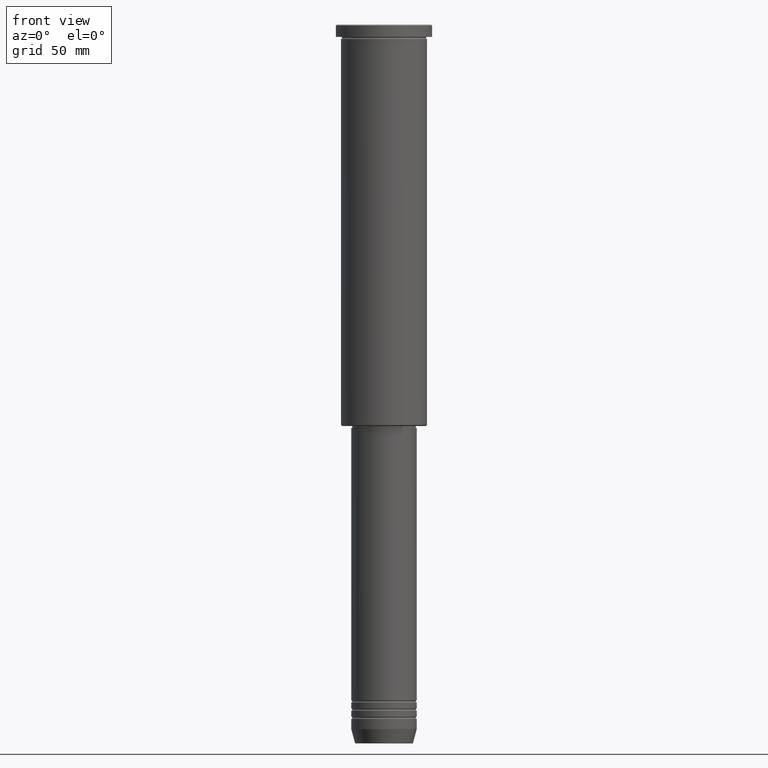
[diagram: clean part render]
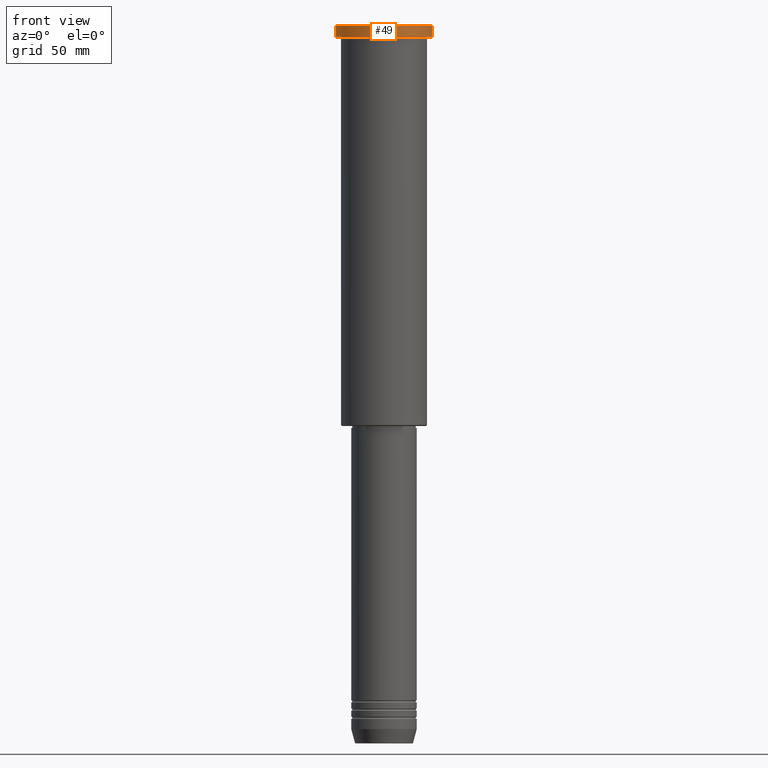
[diagram: same view with one face highlighted and labeled with its STEP entity id]
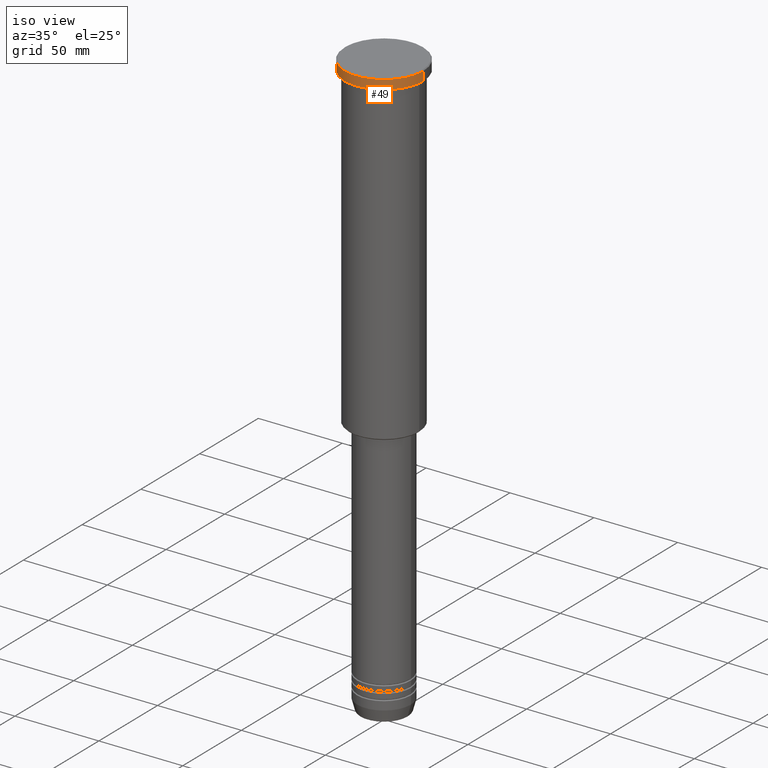
[diagram: same view with one face highlighted and labeled with its STEP entity id]
A machine part, front view. The second image highlights one B-rep face of the part: STEP entity #49.
A second angle (iso view) of the same face is appended — the face is thin or edge-on in the first view.
In plain terms, the highlighted cylindrical surface (partial cylindrical patch) has radius 23.5 mm, axis along (-0, -0, 1).
Its self-contained STEP definition (entity closure, byte-faithful):
#8 = CARTESIAN_POINT ( 'NONE',  ( 0.000000000000000000, 0.000000000000000000, 0.000000000000000000 ) ) ;
#12 = CARTESIAN_POINT ( 'NONE',  ( -23.50000000000000000, 2.877919977996280320E-15, -0.5000000000000004441 ) ) ;
#29 = CARTESIAN_POINT ( 'NONE',  ( -23.50000000000000000, 2.877919977996280320E-15, 0.000000000000000000 ) ) ;
#35 = ORIENTED_EDGE ( 'NONE', *, *, #426, .T. ) ;
#49 = ADVANCED_FACE ( 'NONE', ( #210 ), #750, .T. ) ;
#97 = LINE ( 'NONE', #661, #612 ) ;
#165 = VERTEX_POINT ( 'NONE', #973 ) ;
#210 = FACE_OUTER_BOUND ( 'NONE', #589, .T. ) ;
#241 = EDGE_CURVE ( 'NONE', #953, #966, #964, .T. ) ;
#286 = CARTESIAN_POINT ( 'NONE',  ( 0.000000000000000000, 0.000000000000000000, -5.999999999999993783 ) ) ;
#338 = VERTEX_POINT ( 'NONE', #792 ) ;
#373 = AXIS2_PLACEMENT_3D ( 'NONE', #8, #569, #730 ) ;
#391 = DIRECTION ( 'NONE',  ( 1.000000000000000000, 0.000000000000000000, 0.000000000000000000 ) ) ;
#392 = EDGE_CURVE ( 'NONE', #165, #953, #97, .T. ) ;
#426 = EDGE_CURVE ( 'NONE', #338, #165, #523, .T. ) ;
#450 = AXIS2_PLACEMENT_3D ( 'NONE', #1057, #508, #1039 ) ;
#457 = EDGE_CURVE ( 'NONE', #338, #966, #721, .T. ) ;
#467 = CARTESIAN_POINT ( 'NONE',  ( 23.50000000000000000, 0.000000000000000000, -0.5000000000000004441 ) ) ;
#508 = DIRECTION ( 'NONE',  ( 0.000000000000000000, 0.000000000000000000, -1.000000000000000000 ) ) ;
#523 = CIRCLE ( 'NONE', #595, 23.50000000000000000 ) ;
#569 = DIRECTION ( 'NONE',  ( -0.000000000000000000, -0.000000000000000000, 1.000000000000000000 ) ) ;
#589 = EDGE_LOOP ( 'NONE', ( #1038, #35, #1170, #649 ) ) ;
#595 = AXIS2_PLACEMENT_3D ( 'NONE', #286, #731, #391 ) ;
#612 = VECTOR ( 'NONE', #650, 1000.000000000000000 ) ;
#649 = ORIENTED_EDGE ( 'NONE', *, *, #241, .T. ) ;
#650 = DIRECTION ( 'NONE',  ( -0.000000000000000000, -0.000000000000000000, 1.000000000000000000 ) ) ;
#661 = CARTESIAN_POINT ( 'NONE',  ( 23.50000000000000000, 0.000000000000000000, 0.000000000000000000 ) ) ;
#721 = LINE ( 'NONE', #29, #950 ) ;
#730 = DIRECTION ( 'NONE',  ( 1.000000000000000000, 0.000000000000000000, 0.000000000000000000 ) ) ;
#731 = DIRECTION ( 'NONE',  ( -0.000000000000000000, -0.000000000000000000, 1.000000000000000000 ) ) ;
#750 = CYLINDRICAL_SURFACE ( 'NONE', #373, 23.50000000000000000 ) ;
#792 = CARTESIAN_POINT ( 'NONE',  ( -23.50000000000000000, 2.877919977996280320E-15, -5.999999999999993783 ) ) ;
#908 = DIRECTION ( 'NONE',  ( -0.000000000000000000, -0.000000000000000000, 1.000000000000000000 ) ) ;
#950 = VECTOR ( 'NONE', #908, 1000.000000000000000 ) ;
#953 = VERTEX_POINT ( 'NONE', #467 ) ;
#964 = CIRCLE ( 'NONE', #450, 23.50000000000000000 ) ;
#966 = VERTEX_POINT ( 'NONE', #12 ) ;
#973 = CARTESIAN_POINT ( 'NONE',  ( 23.50000000000000000, 0.000000000000000000, -5.999999999999993783 ) ) ;
#1038 = ORIENTED_EDGE ( 'NONE', *, *, #457, .F. ) ;
#1039 = DIRECTION ( 'NONE',  ( 1.000000000000000000, 0.000000000000000000, 0.000000000000000000 ) ) ;
#1057 = CARTESIAN_POINT ( 'NONE',  ( 0.000000000000000000, 0.000000000000000000, -0.5000000000000004441 ) ) ;
#1170 = ORIENTED_EDGE ( 'NONE', *, *, #392, .T. ) ;